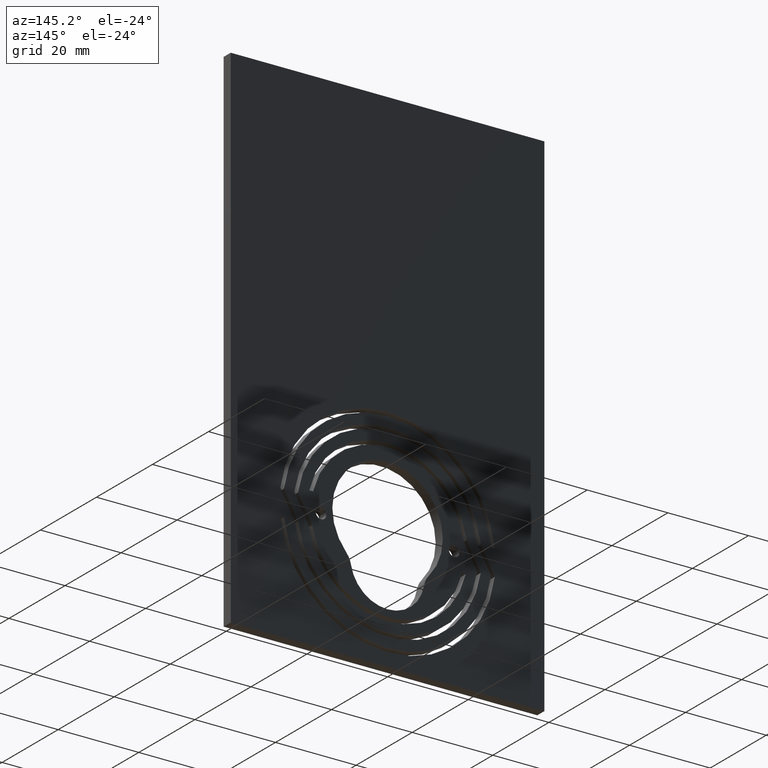
[diagram: clean part render]
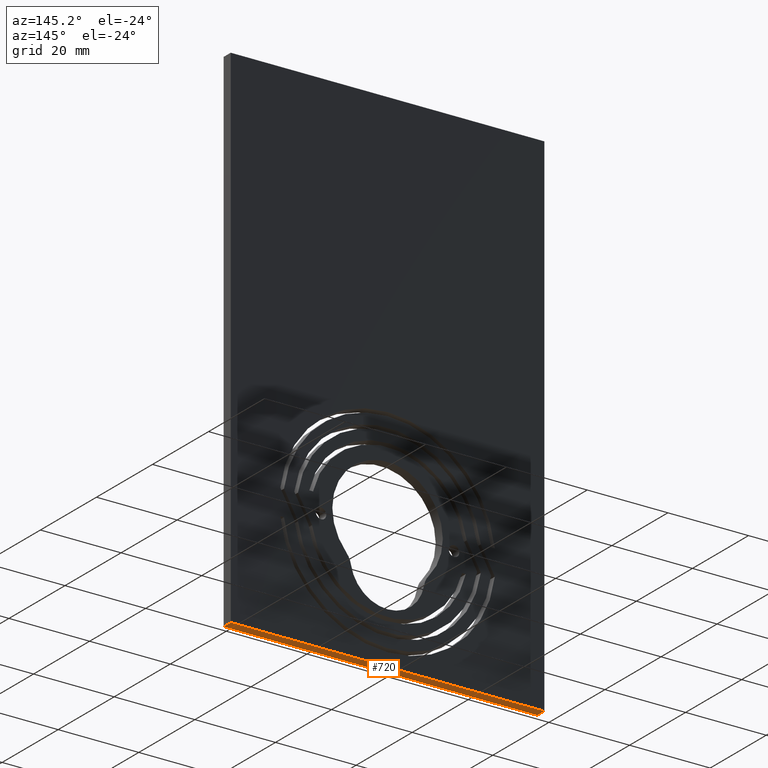
[diagram: same view with one face highlighted and labeled with its STEP entity id]
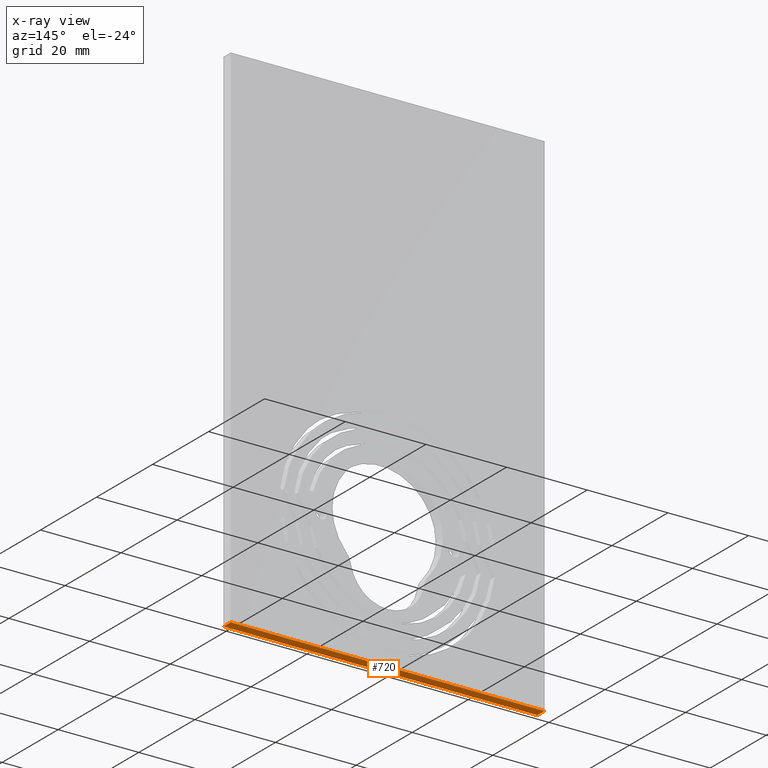
[diagram: x-ray of the same camera — body ghosted, the highlighted face saturated]
A machine part, auxiliary view. The second image highlights one B-rep face of the part: STEP entity #720.
The next image is the same camera in x-ray: the body ghosted, the highlighted face saturated — about 0% of this face is hidden behind the body in this view.
In plain terms, the highlighted planar face has unit normal (0, 0, -1).
Its self-contained STEP definition (entity closure, byte-faithful):
#42=PLANE('',#807);
#78=FACE_OUTER_BOUND('',#114,.T.);
#114=EDGE_LOOP('',(#591,#592,#593,#594));
#186=LINE('',#1219,#252);
#187=LINE('',#1222,#253);
#188=LINE('',#1224,#254);
#189=LINE('',#1225,#255);
#252=VECTOR('',#1008,10.);
#253=VECTOR('',#1011,10.);
#254=VECTOR('',#1012,10.);
#255=VECTOR('',#1013,10.);
#357=VERTEX_POINT('',#1212);
#360=VERTEX_POINT('',#1217);
#361=VERTEX_POINT('',#1221);
#362=VERTEX_POINT('',#1223);
#458=EDGE_CURVE('',#357,#360,#186,.T.);
#459=EDGE_CURVE('',#361,#357,#187,.T.);
#460=EDGE_CURVE('',#362,#360,#188,.T.);
#461=EDGE_CURVE('',#361,#362,#189,.T.);
#591=ORIENTED_EDGE('',*,*,#459,.T.);
#592=ORIENTED_EDGE('',*,*,#458,.T.);
#593=ORIENTED_EDGE('',*,*,#460,.F.);
#594=ORIENTED_EDGE('',*,*,#461,.F.);
#720=ADVANCED_FACE('',(#78),#42,.T.);
#807=AXIS2_PLACEMENT_3D('',#1220,#1009,#1010);
#1008=DIRECTION('',(0.,-1.,0.));
#1009=DIRECTION('center_axis',(0.,0.,-1.));
#1010=DIRECTION('ref_axis',(1.,0.,0.));
#1011=DIRECTION('',(1.,0.,0.));
#1012=DIRECTION('',(1.,0.,0.));
#1013=DIRECTION('',(0.,-1.,0.));
#1212=CARTESIAN_POINT('',(38.8874,0.,-32.));
#1217=CARTESIAN_POINT('',(38.8874,-2.54,-32.));
#1219=CARTESIAN_POINT('',(38.8874,0.,-32.));
#1220=CARTESIAN_POINT('Origin',(-38.8874,0.,-32.));
#1221=CARTESIAN_POINT('',(-38.8874,0.,-32.));
#1222=CARTESIAN_POINT('',(-38.8874,0.,-32.));
#1223=CARTESIAN_POINT('',(-38.8874,-2.54,-32.));
#1224=CARTESIAN_POINT('',(-38.8874,-2.54,-32.));
#1225=CARTESIAN_POINT('',(-38.8874,0.,-32.));